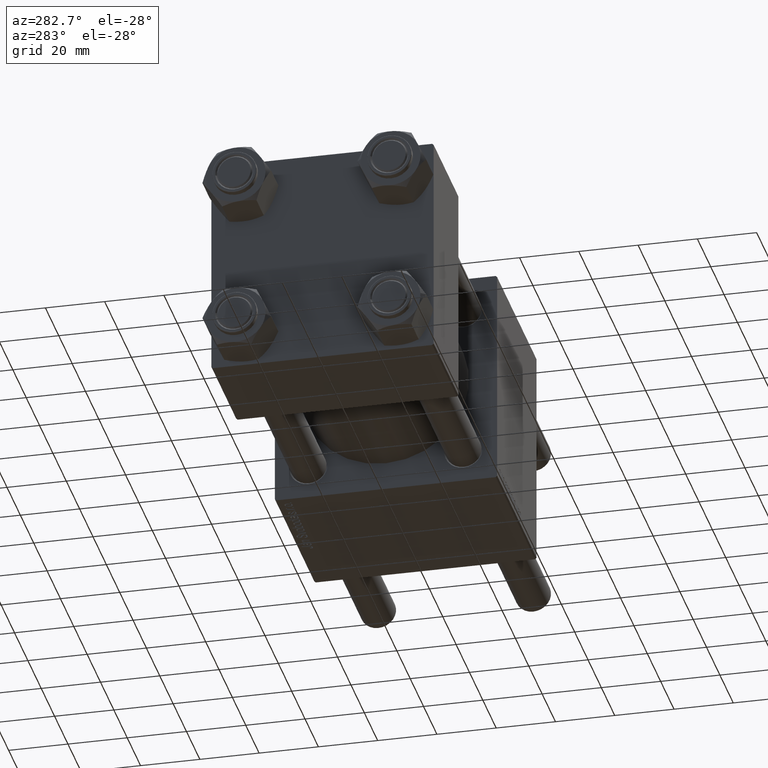
[diagram: clean part render]
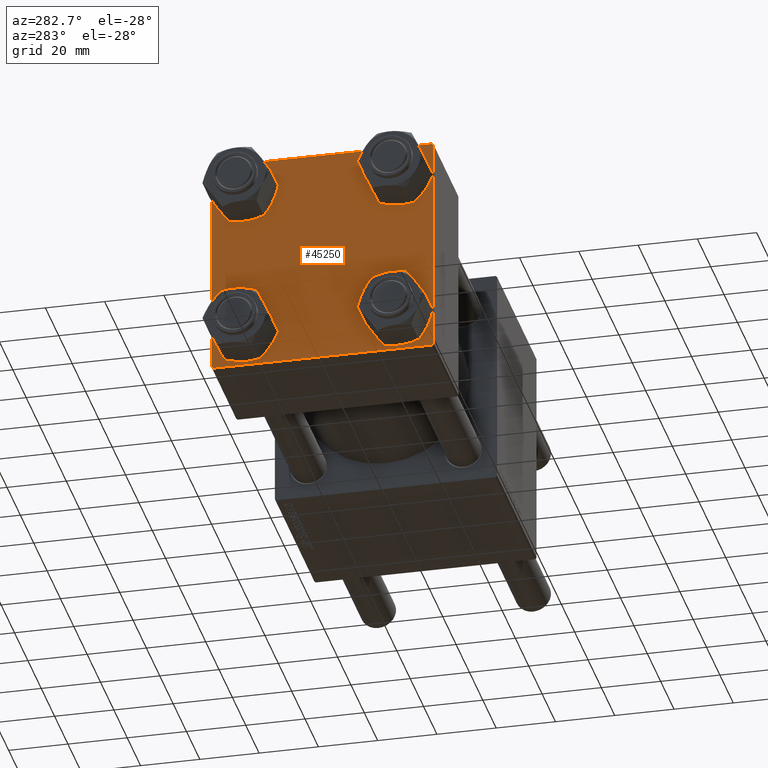
[diagram: same view with one face highlighted and labeled with its STEP entity id]
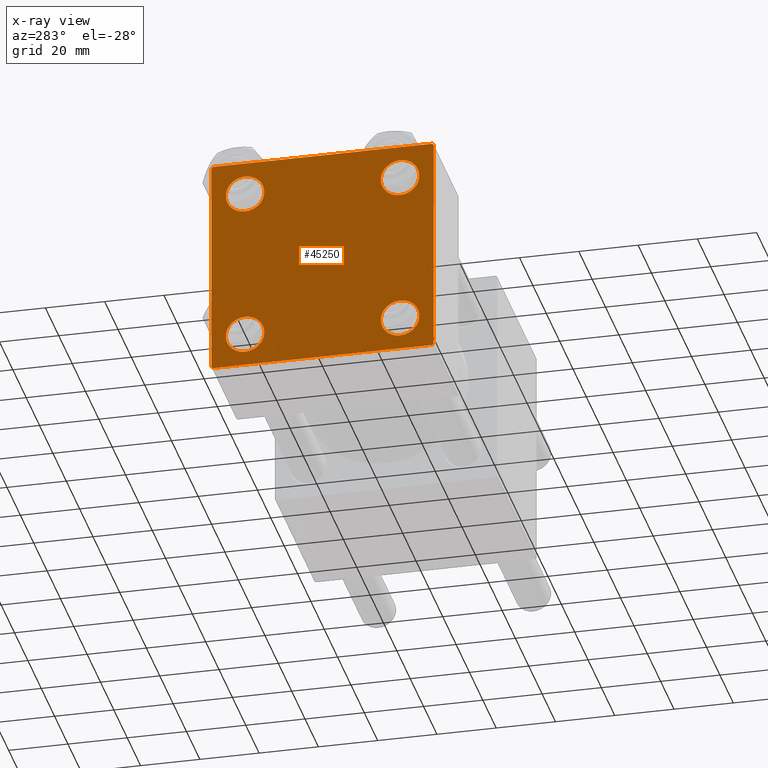
[diagram: x-ray of the same camera — body ghosted, the highlighted face saturated]
A machine part, auxiliary view. The second image highlights one B-rep face of the part: STEP entity #45250.
The next image is the same camera in x-ray: the body ghosted, the highlighted face saturated — about 0% of this face is hidden behind the body in this view.
In plain terms, the highlighted planar face has unit normal (-1, 0, 0).
Its self-contained STEP definition (entity closure, byte-faithful):
#767 = CARTESIAN_POINT ( 'NONE',  ( 0.000000000000000000, 26.14999999999999858, -19.64999999999998792 ) ) ;
#1623 = VERTEX_POINT ( 'NONE', #43389 ) ;
#1803 = CARTESIAN_POINT ( 'NONE',  ( 0.000000000000000000, 37.49999999999999289, 37.50000000000000000 ) ) ;
#2356 = CARTESIAN_POINT ( 'NONE',  ( 0.000000000000000000, -26.14999999999999147, -26.15000000000000924 ) ) ;
#2709 = EDGE_CURVE ( 'NONE', #49106, #25979, #6740, .T. ) ;
#3233 = DIRECTION ( 'NONE',  ( -0.000000000000000000, 0.000000000000000000, 1.000000000000000000 ) ) ;
#4124 = EDGE_CURVE ( 'NONE', #23498, #14370, #24650, .T. ) ;
#4532 = CARTESIAN_POINT ( 'NONE',  ( 0.000000000000000000, 26.14999999999999858, -32.65000000000001990 ) ) ;
#4656 = ORIENTED_EDGE ( 'NONE', *, *, #15020, .T. ) ;
#4730 = CARTESIAN_POINT ( 'NONE',  ( 0.000000000000000000, 36.99999999999999289, 37.50000000000000000 ) ) ;
#5213 = AXIS2_PLACEMENT_3D ( 'NONE', #19735, #23484, #10581 ) ;
#5266 = EDGE_CURVE ( 'NONE', #11679, #25979, #39780, .T. ) ;
#5371 = VERTEX_POINT ( 'NONE', #53848 ) ;
#5481 = CARTESIAN_POINT ( 'NONE',  ( 0.000000000000000000, -26.14999999999999147, 26.15000000000000924 ) ) ;
#5590 = VECTOR ( 'NONE', #21320, 1000.000000000000000 ) ;
#6093 = DIRECTION ( 'NONE',  ( 0.000000000000000000, 0.000000000000000000, -1.000000000000000000 ) ) ;
#6213 = EDGE_CURVE ( 'NONE', #37687, #39425, #52178, .T. ) ;
#6343 = CARTESIAN_POINT ( 'NONE',  ( 0.000000000000000000, 37.49999999999999289, -37.50000000000000000 ) ) ;
#6708 = ORIENTED_EDGE ( 'NONE', *, *, #5266, .T. ) ;
#6740 = LINE ( 'NONE', #24218, #5590 ) ;
#7123 = VERTEX_POINT ( 'NONE', #27554 ) ;
#7386 = ORIENTED_EDGE ( 'NONE', *, *, #20234, .T. ) ;
#7948 = LINE ( 'NONE', #34035, #11478 ) ;
#8438 = ORIENTED_EDGE ( 'NONE', *, *, #4124, .T. ) ;
#9794 = CARTESIAN_POINT ( 'NONE',  ( 0.000000000000000000, -26.14999999999999147, 19.64999999999999147 ) ) ;
#10581 = DIRECTION ( 'NONE',  ( 0.000000000000000000, 0.000000000000000000, 1.000000000000000000 ) ) ;
#10979 = FACE_BOUND ( 'NONE', #52650, .T. ) ;
#11256 = FACE_BOUND ( 'NONE', #44936, .T. ) ;
#11478 = VECTOR ( 'NONE', #29732, 1000.000000000000000 ) ;
#11678 = VERTEX_POINT ( 'NONE', #53517 ) ;
#11679 = VERTEX_POINT ( 'NONE', #32011 ) ;
#11752 = EDGE_LOOP ( 'NONE', ( #53169, #21005, #8438, #33271, #43056, #6708, #36453, #48167 ) ) ;
#11812 = FACE_OUTER_BOUND ( 'NONE', #11752, .T. ) ;
#11850 = LINE ( 'NONE', #42534, #53758 ) ;
#12232 = DIRECTION ( 'NONE',  ( 1.000000000000000000, -0.000000000000000000, 0.000000000000000000 ) ) ;
#12515 = DIRECTION ( 'NONE',  ( 0.000000000000000000, 0.000000000000000000, 1.000000000000000000 ) ) ;
#12834 = CARTESIAN_POINT ( 'NONE',  ( 0.000000000000000000, 26.14999999999999858, 26.15000000000000213 ) ) ;
#14031 = CIRCLE ( 'NONE', #28666, 6.500000000000023093 ) ;
#14083 = AXIS2_PLACEMENT_3D ( 'NONE', #12834, #52698, #53268 ) ;
#14370 = VERTEX_POINT ( 'NONE', #22210 ) ;
#14900 = DIRECTION ( 'NONE',  ( 0.000000000000000000, 0.000000000000000000, 1.000000000000000000 ) ) ;
#14974 = AXIS2_PLACEMENT_3D ( 'NONE', #28089, #19199, #14900 ) ;
#15020 = EDGE_CURVE ( 'NONE', #36188, #55371, #14031, .T. ) ;
#15227 = CARTESIAN_POINT ( 'NONE',  ( 0.000000000000000000, 26.14999999999999858, 32.65000000000002700 ) ) ;
#15252 = AXIS2_PLACEMENT_3D ( 'NONE', #24996, #42497, #3233 ) ;
#16203 = VERTEX_POINT ( 'NONE', #44581 ) ;
#17967 = AXIS2_PLACEMENT_3D ( 'NONE', #52828, #31035, #44225 ) ;
#18208 = DIRECTION ( 'NONE',  ( 1.000000000000000000, -0.000000000000000000, 0.000000000000000000 ) ) ;
#18944 = DIRECTION ( 'NONE',  ( 0.000000000000000000, 0.000000000000000000, 1.000000000000000000 ) ) ;
#18994 = LINE ( 'NONE', #1803, #32426 ) ;
#19199 = DIRECTION ( 'NONE',  ( 1.000000000000000000, -0.000000000000000000, 0.000000000000000000 ) ) ;
#19236 = DIRECTION ( 'NONE',  ( 0.000000000000000000, -1.000000000000000000, -9.251858538542972814E-17 ) ) ;
#19403 = CARTESIAN_POINT ( 'NONE',  ( 0.000000000000000000, 26.14999999999999858, 26.15000000000000213 ) ) ;
#19735 = CARTESIAN_POINT ( 'NONE',  ( 0.000000000000000000, 26.14999999999999858, -26.15000000000000213 ) ) ;
#20234 = EDGE_CURVE ( 'NONE', #16203, #7123, #48089, .T. ) ;
#20444 = ORIENTED_EDGE ( 'NONE', *, *, #46246, .T. ) ;
#21005 = ORIENTED_EDGE ( 'NONE', *, *, #23461, .T. ) ;
#21320 = DIRECTION ( 'NONE',  ( 0.000000000000000000, -1.000000000000000000, -9.251858538542971581E-17 ) ) ;
#22210 = CARTESIAN_POINT ( 'NONE',  ( 0.000000000000000000, -37.00000000000002132, -37.50000000000000711 ) ) ;
#22556 = CIRCLE ( 'NONE', #17967, 6.500000000000023093 ) ;
#23461 = EDGE_CURVE ( 'NONE', #1623, #23498, #29868, .T. ) ;
#23484 = DIRECTION ( 'NONE',  ( 1.000000000000000000, -0.000000000000000000, 0.000000000000000000 ) ) ;
#23498 = VERTEX_POINT ( 'NONE', #30998 ) ;
#24218 = CARTESIAN_POINT ( 'NONE',  ( 0.000000000000000000, 37.49999999999999289, 37.50000000000000000 ) ) ;
#24650 = LINE ( 'NONE', #6343, #44039 ) ;
#24996 = CARTESIAN_POINT ( 'NONE',  ( 0.000000000000000000, 0.000000000000000000, 0.000000000000000000 ) ) ;
#25651 = VECTOR ( 'NONE', #39484, 1000.000000000000114 ) ;
#25979 = VERTEX_POINT ( 'NONE', #51246 ) ;
#26142 = EDGE_CURVE ( 'NONE', #14370, #5371, #7948, .T. ) ;
#26960 = VECTOR ( 'NONE', #47366, 1000.000000000000114 ) ;
#27554 = CARTESIAN_POINT ( 'NONE',  ( 0.000000000000000000, -26.14999999999999147, -32.65000000000002700 ) ) ;
#27601 = CARTESIAN_POINT ( 'NONE',  ( 0.000000000000000000, -37.50000000000000711, 37.49999999999999289 ) ) ;
#28089 = CARTESIAN_POINT ( 'NONE',  ( 0.000000000000000000, 26.14999999999999858, -26.15000000000000213 ) ) ;
#28430 = DIRECTION ( 'NONE',  ( 0.000000000000000000, 0.000000000000000000, 1.000000000000000000 ) ) ;
#28666 = AXIS2_PLACEMENT_3D ( 'NONE', #19403, #32039, #39546 ) ;
#29300 = PLANE ( 'NONE',  #15252 ) ;
#29727 = CARTESIAN_POINT ( 'NONE',  ( 0.000000000000000000, -26.14999999999999147, -26.15000000000000924 ) ) ;
#29732 = DIRECTION ( 'NONE',  ( 0.000000000000000000, -0.7071067811865524577, 0.7071067811865426878 ) ) ;
#29868 = LINE ( 'NONE', #43046, #26960 ) ;
#30913 = CARTESIAN_POINT ( 'NONE',  ( -0.000000000000000000, -37.25000000000000000, 37.25000000000000000 ) ) ;
#30998 = CARTESIAN_POINT ( 'NONE',  ( 0.000000000000000000, 36.99999999999997868, -37.50000000000000000 ) ) ;
#31035 = DIRECTION ( 'NONE',  ( 1.000000000000000000, -0.000000000000000000, 0.000000000000000000 ) ) ;
#31150 = AXIS2_PLACEMENT_3D ( 'NONE', #5481, #39868, #18944 ) ;
#32007 = EDGE_CURVE ( 'NONE', #38256, #34038, #39687, .T. ) ;
#32011 = CARTESIAN_POINT ( 'NONE',  ( 0.000000000000000000, -37.50000000000000711, 36.99999999999999289 ) ) ;
#32039 = DIRECTION ( 'NONE',  ( 1.000000000000000000, -0.000000000000000000, 0.000000000000000000 ) ) ;
#32426 = VECTOR ( 'NONE', #6093, 1000.000000000000000 ) ;
#32595 = EDGE_CURVE ( 'NONE', #11678, #1623, #18994, .T. ) ;
#32635 = ORIENTED_EDGE ( 'NONE', *, *, #32007, .T. ) ;
#33180 = EDGE_CURVE ( 'NONE', #55371, #36188, #39722, .T. ) ;
#33271 = ORIENTED_EDGE ( 'NONE', *, *, #26142, .T. ) ;
#33353 = VECTOR ( 'NONE', #45102, 1000.000000000000000 ) ;
#33622 = ORIENTED_EDGE ( 'NONE', *, *, #39946, .T. ) ;
#33624 = EDGE_CURVE ( 'NONE', #7123, #16203, #37928, .T. ) ;
#34035 = CARTESIAN_POINT ( 'NONE',  ( 0.000000000000000000, -37.24999999999975842, -37.25000000000027001 ) ) ;
#34038 = VERTEX_POINT ( 'NONE', #4532 ) ;
#34412 = ORIENTED_EDGE ( 'NONE', *, *, #33180, .T. ) ;
#34828 = EDGE_CURVE ( 'NONE', #11679, #5371, #53715, .T. ) ;
#36188 = VERTEX_POINT ( 'NONE', #42773 ) ;
#36453 = ORIENTED_EDGE ( 'NONE', *, *, #2709, .F. ) ;
#37687 = VERTEX_POINT ( 'NONE', #56303 ) ;
#37928 = CIRCLE ( 'NONE', #46172, 6.500000000000015987 ) ;
#38256 = VERTEX_POINT ( 'NONE', #767 ) ;
#39425 = VERTEX_POINT ( 'NONE', #9794 ) ;
#39484 = DIRECTION ( 'NONE',  ( -0.000000000000000000, 0.7071067811865474617, 0.7071067811865474617 ) ) ;
#39546 = DIRECTION ( 'NONE',  ( 0.000000000000000000, 0.000000000000000000, 1.000000000000000000 ) ) ;
#39687 = CIRCLE ( 'NONE', #14974, 6.500000000000015987 ) ;
#39722 = CIRCLE ( 'NONE', #14083, 6.500000000000023093 ) ;
#39780 = LINE ( 'NONE', #30913, #25651 ) ;
#39868 = DIRECTION ( 'NONE',  ( 1.000000000000000000, -0.000000000000000000, 0.000000000000000000 ) ) ;
#39946 = EDGE_CURVE ( 'NONE', #39425, #37687, #22556, .T. ) ;
#40890 = CIRCLE ( 'NONE', #5213, 6.500000000000015987 ) ;
#41506 = ORIENTED_EDGE ( 'NONE', *, *, #6213, .T. ) ;
#42497 = DIRECTION ( 'NONE',  ( -1.000000000000000000, 0.000000000000000000, -0.000000000000000000 ) ) ;
#42534 = CARTESIAN_POINT ( 'NONE',  ( 0.000000000000000000, 37.24999999999999289, 37.24999999999999289 ) ) ;
#42773 = CARTESIAN_POINT ( 'NONE',  ( 0.000000000000000000, 26.14999999999999858, 19.64999999999998437 ) ) ;
#43046 = CARTESIAN_POINT ( 'NONE',  ( 0.000000000000000000, 37.24999999999998579, -37.24999999999998579 ) ) ;
#43056 = ORIENTED_EDGE ( 'NONE', *, *, #34828, .F. ) ;
#43097 = DIRECTION ( 'NONE',  ( 0.000000000000000000, 0.7071067811865474617, -0.7071067811865474617 ) ) ;
#43389 = CARTESIAN_POINT ( 'NONE',  ( 0.000000000000000000, 37.49999999999999289, -36.99999999999998579 ) ) ;
#44039 = VECTOR ( 'NONE', #19236, 1000.000000000000000 ) ;
#44225 = DIRECTION ( 'NONE',  ( 0.000000000000000000, 0.000000000000000000, 1.000000000000000000 ) ) ;
#44581 = CARTESIAN_POINT ( 'NONE',  ( 0.000000000000000000, -26.14999999999999147, -19.64999999999999503 ) ) ;
#44936 = EDGE_LOOP ( 'NONE', ( #7386, #56635 ) ) ;
#45102 = DIRECTION ( 'NONE',  ( 0.000000000000000000, 9.251858538542971581E-17, -1.000000000000000000 ) ) ;
#45119 = EDGE_LOOP ( 'NONE', ( #41506, #33622 ) ) ;
#45250 = ADVANCED_FACE ( 'NONE', ( #50266, #11256, #51109, #10979, #11812 ), #29300, .T. ) ;
#46172 = AXIS2_PLACEMENT_3D ( 'NONE', #2356, #18208, #28430 ) ;
#46246 = EDGE_CURVE ( 'NONE', #34038, #38256, #40890, .T. ) ;
#47366 = DIRECTION ( 'NONE',  ( -0.000000000000000000, -0.7071067811865474617, -0.7071067811865474617 ) ) ;
#47767 = EDGE_CURVE ( 'NONE', #49106, #11678, #11850, .T. ) ;
#48089 = CIRCLE ( 'NONE', #56307, 6.500000000000015987 ) ;
#48167 = ORIENTED_EDGE ( 'NONE', *, *, #47767, .T. ) ;
#48206 = EDGE_LOOP ( 'NONE', ( #32635, #20444 ) ) ;
#49106 = VERTEX_POINT ( 'NONE', #4730 ) ;
#50266 = FACE_BOUND ( 'NONE', #45119, .T. ) ;
#51109 = FACE_BOUND ( 'NONE', #48206, .T. ) ;
#51246 = CARTESIAN_POINT ( 'NONE',  ( 0.000000000000000000, -37.00000000000000711, 37.49999999999999289 ) ) ;
#52178 = CIRCLE ( 'NONE', #31150, 6.500000000000023093 ) ;
#52650 = EDGE_LOOP ( 'NONE', ( #34412, #4656 ) ) ;
#52698 = DIRECTION ( 'NONE',  ( 1.000000000000000000, -0.000000000000000000, 0.000000000000000000 ) ) ;
#52828 = CARTESIAN_POINT ( 'NONE',  ( 0.000000000000000000, -26.14999999999999147, 26.15000000000000924 ) ) ;
#53169 = ORIENTED_EDGE ( 'NONE', *, *, #32595, .T. ) ;
#53268 = DIRECTION ( 'NONE',  ( 0.000000000000000000, 0.000000000000000000, 1.000000000000000000 ) ) ;
#53517 = CARTESIAN_POINT ( 'NONE',  ( 0.000000000000000000, 37.49999999999999289, 37.00000000000000000 ) ) ;
#53715 = LINE ( 'NONE', #27601, #33353 ) ;
#53758 = VECTOR ( 'NONE', #43097, 1000.000000000000114 ) ;
#53848 = CARTESIAN_POINT ( 'NONE',  ( 0.000000000000000000, -37.50000000000000000, -37.00000000000003553 ) ) ;
#55371 = VERTEX_POINT ( 'NONE', #15227 ) ;
#56303 = CARTESIAN_POINT ( 'NONE',  ( 0.000000000000000000, -26.14999999999999147, 32.65000000000003411 ) ) ;
#56307 = AXIS2_PLACEMENT_3D ( 'NONE', #29727, #12232, #12515 ) ;
#56635 = ORIENTED_EDGE ( 'NONE', *, *, #33624, .T. ) ;